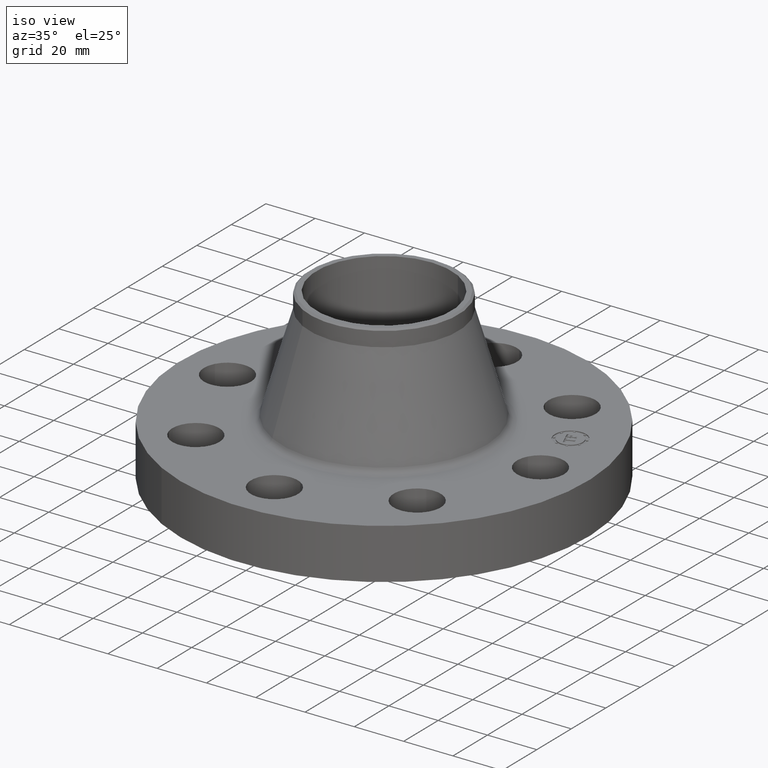
[diagram: clean part render]
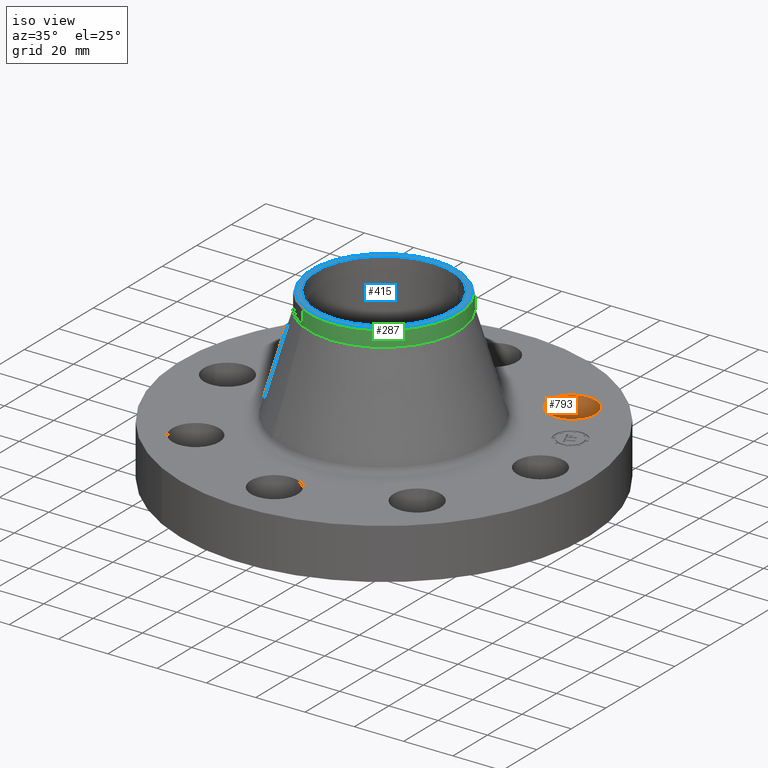
[diagram: same view with three faces highlighted in distinct colors, each labeled with its STEP entity id]
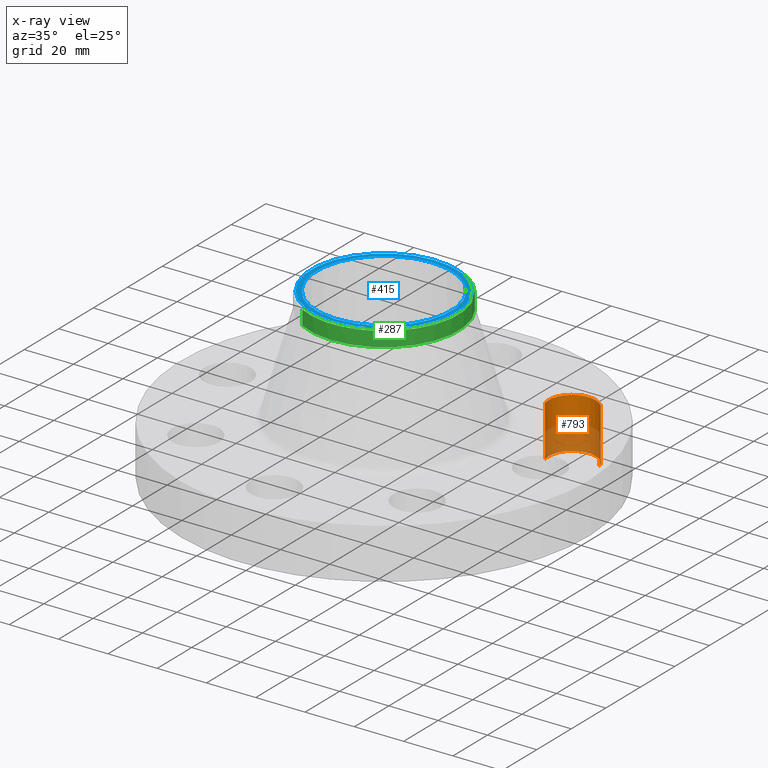
[diagram: x-ray of the same camera — body ghosted, the three highlighted faces saturated]
A machine part, iso view with three faces highlighted in distinct colors.
The next image is the same camera in x-ray (body ghosted, the three faces saturated) — at least one of them is partly hidden behind the body in this view.
Their STEP definitions:

[orange] entity #793 — the highlighted cylindrical surface (edge-blend (fillet) strip) has radius 9.525 mm, axis along (0, 0, -1).
#574=AXIS2_PLACEMENT_3D('Circle Axis2P3D',#572,#573,$) ;
#766=AXIS2_PLACEMENT_3D('Cylinder Axis2P3D',#763,#764,#765) ;
#784=AXIS2_PLACEMENT_3D('Circle Axis2P3D',#782,#783,$) ;
#572=CARTESIAN_POINT('Axis2P3D Location',(1.76776695297,1.76776695297,0.)) ;
#576=CARTESIAN_POINT('Vertex',(1.40793584173,1.66218962879,0.)) ;
#578=CARTESIAN_POINT('Vertex',(2.12759806422,1.87334427715,0.)) ;
#763=CARTESIAN_POINT('Axis2P3D Location',(1.76776695297,1.76776695297,0.806062992129)) ;
#768=CARTESIAN_POINT('Line Origine',(1.40793584173,1.66218962879,0.405000000002)) ;
#772=CARTESIAN_POINT('Vertex',(1.40793584173,1.66218962879,0.810000000003)) ;
#775=CARTESIAN_POINT('Line Origine',(2.12759806422,1.87334427715,0.405000000002)) ;
#779=CARTESIAN_POINT('Vertex',(2.12759806422,1.87334427715,0.810000000003)) ;
#782=CARTESIAN_POINT('Axis2P3D Location',(1.76776695297,1.76776695297,0.810000000003)) ;
#573=DIRECTION('Axis2P3D Direction',(0.,0.,-0.0393700787402)) ;
#764=DIRECTION('Axis2P3D Direction',(0.,0.,-0.0393700787402)) ;
#765=DIRECTION('Axis2P3D XDirection',(0.0377775444876,0.0110842335096,0.)) ;
#769=DIRECTION('Vector Direction',(0.,0.,-0.0393700787402)) ;
#776=DIRECTION('Vector Direction',(0.,0.,-0.0393700787402)) ;
#783=DIRECTION('Axis2P3D Direction',(0.,0.,-0.0393700787402)) ;
#770=VECTOR('Line Direction',#769,0.0393700787402) ;
#777=VECTOR('Line Direction',#776,0.0393700787402) ;
#788=ORIENTED_EDGE('',*,*,#774,.F.) ;
#789=ORIENTED_EDGE('',*,*,#580,.T.) ;
#790=ORIENTED_EDGE('',*,*,#781,.T.) ;
#791=ORIENTED_EDGE('',*,*,#786,.F.) ;
#793=ADVANCED_FACE('PartBody',(#792),#767,.F.) ;
#575=CIRCLE('generated circle',#574,0.375000000001) ;
#785=CIRCLE('generated circle',#784,0.375000000001) ;
#767=CYLINDRICAL_SURFACE('generated cylinder',#766,0.375000000001) ;
#580=EDGE_CURVE('',#577,#579,#575,.T.) ;
#774=EDGE_CURVE('',#577,#773,#771,.F.) ;
#781=EDGE_CURVE('',#579,#780,#778,.F.) ;
#786=EDGE_CURVE('',#773,#780,#785,.T.) ;
#787=EDGE_LOOP('',(#788,#789,#790,#791)) ;
#792=FACE_OUTER_BOUND('',#787,.T.) ;
#771=LINE('Line',#768,#770) ;
#778=LINE('Line',#775,#777) ;
#577=VERTEX_POINT('',#576) ;
#579=VERTEX_POINT('',#578) ;
#773=VERTEX_POINT('',#772) ;
#780=VERTEX_POINT('',#779) ;

[blue] entity #415 — the highlighted planar face has unit normal (0, 0, -1).
#322=AXIS2_PLACEMENT_3D('Circle Axis2P3D',#320,#321,$) ;
#347=AXIS2_PLACEMENT_3D('Circle Axis2P3D',#345,#346,$) ;
#382=AXIS2_PLACEMENT_3D('Circle Axis2P3D',#380,#381,$) ;
#400=AXIS2_PLACEMENT_3D('Plane Axis2P3D',#397,#398,#399) ;
#404=AXIS2_PLACEMENT_3D('Circle Axis2P3D',#402,#403,$) ;
#317=CARTESIAN_POINT('Vertex',(0.554810485796,-1.01557378213,2.69000000001)) ;
#320=CARTESIAN_POINT('Axis2P3D Location',(0.,0.,2.69000000001)) ;
#324=CARTESIAN_POINT('Vertex',(-0.554810485796,1.01557378213,2.69000000001)) ;
#345=CARTESIAN_POINT('Axis2P3D Location',(0.,0.,2.69000000001)) ;
#349=CARTESIAN_POINT('Vertex',(-0.517060443387,-0.946472793003,2.69000000001)) ;
#351=CARTESIAN_POINT('Vertex',(0.517060443387,0.946472793003,2.69000000001)) ;
#380=CARTESIAN_POINT('Axis2P3D Location',(0.,0.,2.69000000001)) ;
#397=CARTESIAN_POINT('Axis2P3D Location',(0.,1.19,2.69000000001)) ;
#402=CARTESIAN_POINT('Axis2P3D Location',(0.,0.,2.69000000001)) ;
#321=DIRECTION('Axis2P3D Direction',(0.,0.,-0.0393700787402)) ;
#346=DIRECTION('Axis2P3D Direction',(0.,0.,-0.0393700787402)) ;
#381=DIRECTION('Axis2P3D Direction',(0.,0.,-0.0393700787402)) ;
#398=DIRECTION('Axis2P3D Direction',(0.,0.,-0.0393700787402)) ;
#399=DIRECTION('Axis2P3D XDirection',(0.0393700787402,0.,0.)) ;
#403=DIRECTION('Axis2P3D Direction',(0.,0.,-0.0393700787402)) ;
#408=ORIENTED_EDGE('',*,*,#406,.T.) ;
#409=ORIENTED_EDGE('',*,*,#326,.T.) ;
#412=ORIENTED_EDGE('',*,*,#353,.T.) ;
#413=ORIENTED_EDGE('',*,*,#384,.T.) ;
#414=FACE_BOUND('',#411,.T.) ;
#415=ADVANCED_FACE('PartBody',(#410,#414),#401,.F.) ;
#323=CIRCLE('generated circle',#322,1.15724015748) ;
#348=CIRCLE('generated circle',#347,1.0785) ;
#383=CIRCLE('generated circle',#382,1.0785) ;
#405=CIRCLE('generated circle',#404,1.15724015748) ;
#326=EDGE_CURVE('',#325,#318,#323,.F.) ;
#353=EDGE_CURVE('',#350,#352,#348,.T.) ;
#384=EDGE_CURVE('',#352,#350,#383,.T.) ;
#406=EDGE_CURVE('',#318,#325,#405,.F.) ;
#407=EDGE_LOOP('',(#408,#409)) ;
#411=EDGE_LOOP('',(#412,#413)) ;
#410=FACE_OUTER_BOUND('',#407,.T.) ;
#401=PLANE('',#400) ;
#318=VERTEX_POINT('',#317) ;
#325=VERTEX_POINT('',#324) ;
#350=VERTEX_POINT('',#349) ;
#352=VERTEX_POINT('',#351) ;

[green] entity #287 — the highlighted cylindrical surface (partial cylindrical patch) has radius 30.226 mm, axis along (0, 0, -1).
#220=AXIS2_PLACEMENT_3D('Circle Axis2P3D',#218,#219,$) ;
#252=AXIS2_PLACEMENT_3D('Cylinder Axis2P3D',#249,#250,#251) ;
#270=AXIS2_PLACEMENT_3D('Circle Axis2P3D',#268,#269,$) ;
#277=AXIS2_PLACEMENT_3D('Circle Axis2P3D',#275,#276,$) ;
#215=CARTESIAN_POINT('Vertex',(0.570516390941,1.04432324865,2.42864201628)) ;
#218=CARTESIAN_POINT('Axis2P3D Location',(0.,0.,2.42864201628)) ;
#222=CARTESIAN_POINT('Vertex',(-0.570516390941,-1.04432324865,2.42864201628)) ;
#249=CARTESIAN_POINT('Axis2P3D Location',(0.,0.,1.34500000001)) ;
#254=CARTESIAN_POINT('Line Origine',(-0.570516390941,-1.04432324865,2.5467522525)) ;
#258=CARTESIAN_POINT('Vertex',(-0.570516390941,-1.04432324865,2.66486248872)) ;
#261=CARTESIAN_POINT('Line Origine',(0.570516390941,1.04432324865,2.5467522525)) ;
#265=CARTESIAN_POINT('Vertex',(0.570516390941,1.04432324865,2.66486248872)) ;
#268=CARTESIAN_POINT('Axis2P3D Location',(0.,0.,2.66486248872)) ;
#272=CARTESIAN_POINT('Vertex',(0.570516390941,-1.04432324865,2.66486248872)) ;
#275=CARTESIAN_POINT('Axis2P3D Location',(0.,0.,2.66486248872)) ;
#219=DIRECTION('Axis2P3D Direction',(0.,0.,-0.0393700787402)) ;
#250=DIRECTION('Axis2P3D Direction',(0.,0.,-0.0393700787402)) ;
#251=DIRECTION('Axis2P3D XDirection',(-0.0188750212049,-0.0345504945626,0.)) ;
#255=DIRECTION('Vector Direction',(0.,0.,-0.0393700787402)) ;
#262=DIRECTION('Vector Direction',(0.,0.,-0.0393700787402)) ;
#269=DIRECTION('Axis2P3D Direction',(0.,0.,-0.0393700787402)) ;
#276=DIRECTION('Axis2P3D Direction',(0.,0.,-0.0393700787402)) ;
#256=VECTOR('Line Direction',#255,0.0393700787402) ;
#263=VECTOR('Line Direction',#262,0.0393700787402) ;
#281=ORIENTED_EDGE('',*,*,#260,.F.) ;
#282=ORIENTED_EDGE('',*,*,#224,.F.) ;
#283=ORIENTED_EDGE('',*,*,#267,.T.) ;
#284=ORIENTED_EDGE('',*,*,#274,.F.) ;
#285=ORIENTED_EDGE('',*,*,#279,.T.) ;
#287=ADVANCED_FACE('PartBody',(#286),#253,.T.) ;
#221=CIRCLE('generated circle',#220,1.19) ;
#271=CIRCLE('generated circle',#270,1.19) ;
#278=CIRCLE('generated circle',#277,1.19) ;
#253=CYLINDRICAL_SURFACE('generated cylinder',#252,1.19) ;
#224=EDGE_CURVE('',#216,#223,#221,.T.) ;
#260=EDGE_CURVE('',#223,#259,#257,.F.) ;
#267=EDGE_CURVE('',#216,#266,#264,.F.) ;
#274=EDGE_CURVE('',#273,#266,#271,.F.) ;
#279=EDGE_CURVE('',#273,#259,#278,.T.) ;
#280=EDGE_LOOP('',(#281,#282,#283,#284,#285)) ;
#286=FACE_OUTER_BOUND('',#280,.T.) ;
#257=LINE('Line',#254,#256) ;
#264=LINE('Line',#261,#263) ;
#216=VERTEX_POINT('',#215) ;
#223=VERTEX_POINT('',#222) ;
#259=VERTEX_POINT('',#258) ;
#266=VERTEX_POINT('',#265) ;
#273=VERTEX_POINT('',#272) ;